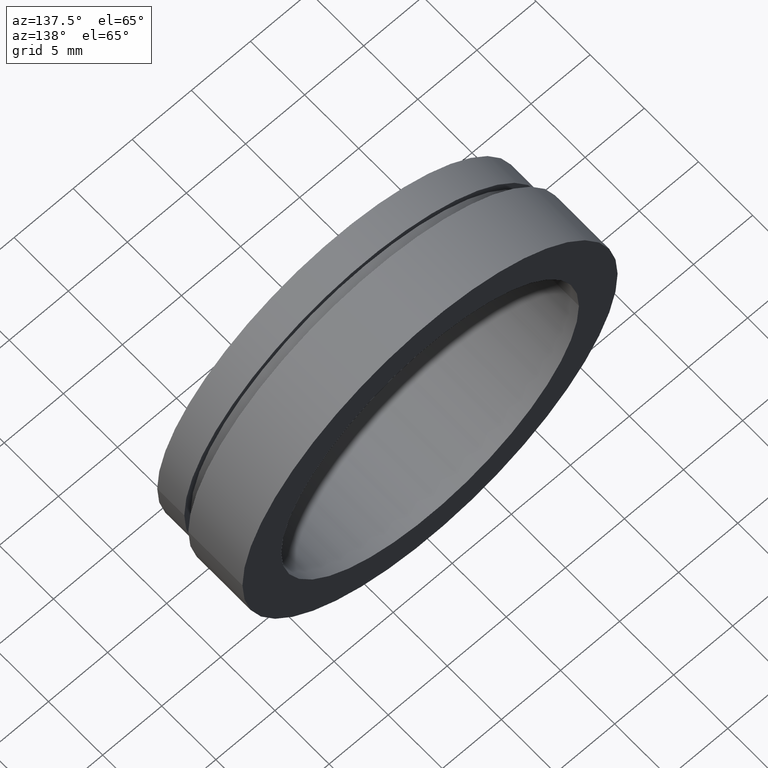
[diagram: clean part render]
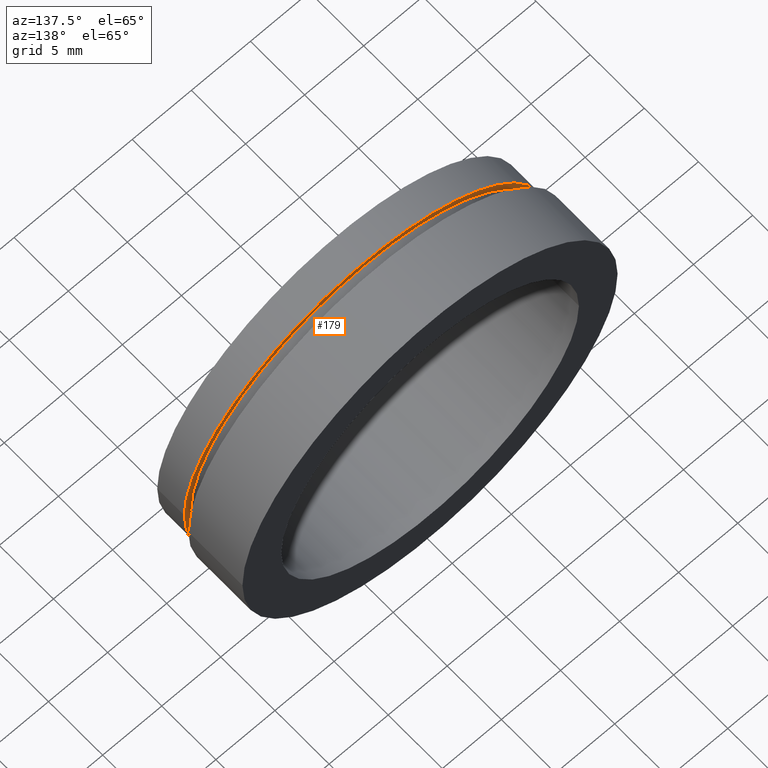
[diagram: same view with one face highlighted and labeled with its STEP entity id]
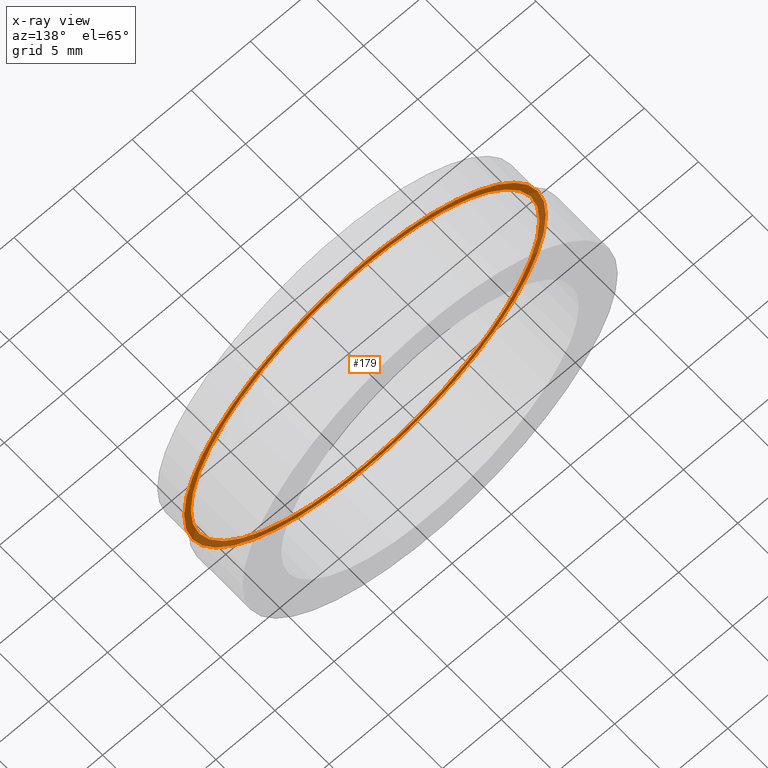
[diagram: x-ray of the same camera — body ghosted, the highlighted face saturated]
A machine part, auxiliary view. The second image highlights one B-rep face of the part: STEP entity #179.
The next image is the same camera in x-ray: the body ghosted, the highlighted face saturated — about 27% of this face is hidden behind the body in this view.
In plain terms, the highlighted planar face has unit normal (0, -1, 0).
Its self-contained STEP definition (entity closure, byte-faithful):
#4 = ORIENTED_EDGE ( 'NONE', *, *, #252, .F. ) ;
#25 = AXIS2_PLACEMENT_3D ( 'NONE', #39, #271, #67 ) ;
#26 = CIRCLE ( 'NONE', #211, 14.74999999999999800 ) ;
#38 = DIRECTION ( 'NONE',  ( -1.224646799147351000E-016, 1.000000000000000000, -0.0000000000000000000 ) ) ;
#39 = CARTESIAN_POINT ( 'NONE',  ( 1.828579243164447600E-015, 1.954535588880333700, 0.0000000000000000000 ) ) ;
#49 = DIRECTION ( 'NONE',  ( 1.000000000000000000, 1.224646799147351000E-016, 0.0000000000000000000 ) ) ;
#51 = VERTEX_POINT ( 'NONE', #172 ) ;
#63 = CIRCLE ( 'NONE', #195, 14.74999999999999800 ) ;
#66 = EDGE_LOOP ( 'NONE', ( #145, #4 ) ) ;
#67 = DIRECTION ( 'NONE',  ( -1.000000000000000000, -1.133806193448893400E-016, 0.0000000000000000000 ) ) ;
#82 = DIRECTION ( 'NONE',  ( 1.224646799147351000E-016, -1.000000000000000000, 0.0000000000000000000 ) ) ;
#127 = ORIENTED_EDGE ( 'NONE', *, *, #279, .T. ) ;
#145 = ORIENTED_EDGE ( 'NONE', *, *, #293, .F. ) ;
#151 = CARTESIAN_POINT ( 'NONE',  ( 1.828579243164447600E-015, 1.954535588880333700, 0.0000000000000000000 ) ) ;
#167 = VERTEX_POINT ( 'NONE', #225 ) ;
#172 = CARTESIAN_POINT ( 'NONE',  ( 15.30000000000000200, 1.954535588880335500, 1.873709602695450400E-015 ) ) ;
#178 = VERTEX_POINT ( 'NONE', #318 ) ;
#179 = ADVANCED_FACE ( 'NONE', ( #386, #196 ), #283, .F. ) ;
#184 = DIRECTION ( 'NONE',  ( -1.224646799147351000E-016, 1.000000000000000000, -0.0000000000000000000 ) ) ;
#190 = CARTESIAN_POINT ( 'NONE',  ( 14.75000000000000000, 1.954535588880335500, 1.806354028742345800E-015 ) ) ;
#195 = AXIS2_PLACEMENT_3D ( 'NONE', #403, #38, #369 ) ;
#196 = FACE_OUTER_BOUND ( 'NONE', #346, .T. ) ;
#206 = DIRECTION ( 'NONE',  ( -1.000000000000000000, -1.133806193448893400E-016, 0.0000000000000000000 ) ) ;
#211 = AXIS2_PLACEMENT_3D ( 'NONE', #151, #184, #244 ) ;
#225 = CARTESIAN_POINT ( 'NONE',  ( -15.29999999999999900, 1.954535588880332000, 0.0000000000000000000 ) ) ;
#229 = EDGE_CURVE ( 'NONE', #167, #51, #263, .T. ) ;
#244 = DIRECTION ( 'NONE',  ( -1.000000000000000000, -1.176083712526648900E-016, 0.0000000000000000000 ) ) ;
#250 = CARTESIAN_POINT ( 'NONE',  ( 1.828579243164447600E-015, 1.954535588880333700, 0.0000000000000000000 ) ) ;
#252 = EDGE_CURVE ( 'NONE', #430, #178, #63, .T. ) ;
#263 = CIRCLE ( 'NONE', #25, 15.30000000000000100 ) ;
#269 = AXIS2_PLACEMENT_3D ( 'NONE', #250, #367, #206 ) ;
#271 = DIRECTION ( 'NONE',  ( -1.224646799147351000E-016, 1.000000000000000000, -0.0000000000000000000 ) ) ;
#279 = EDGE_CURVE ( 'NONE', #51, #167, #415, .T. ) ;
#283 = PLANE ( 'NONE',  #387 ) ;
#293 = EDGE_CURVE ( 'NONE', #178, #430, #26, .T. ) ;
#318 = CARTESIAN_POINT ( 'NONE',  ( -14.74999999999999600, 1.954535588880332000, 0.0000000000000000000 ) ) ;
#324 = ORIENTED_EDGE ( 'NONE', *, *, #229, .T. ) ;
#346 = EDGE_LOOP ( 'NONE', ( #324, #127 ) ) ;
#367 = DIRECTION ( 'NONE',  ( -1.224646799147351000E-016, 1.000000000000000000, -0.0000000000000000000 ) ) ;
#369 = DIRECTION ( 'NONE',  ( -1.000000000000000000, -1.176083712526648900E-016, 0.0000000000000000000 ) ) ;
#386 = FACE_BOUND ( 'NONE', #66, .T. ) ;
#387 = AXIS2_PLACEMENT_3D ( 'NONE', #424, #82, #49 ) ;
#403 = CARTESIAN_POINT ( 'NONE',  ( 1.828579243164447600E-015, 1.954535588880333700, 0.0000000000000000000 ) ) ;
#415 = CIRCLE ( 'NONE', #269, 15.30000000000000100 ) ;
#424 = CARTESIAN_POINT ( 'NONE',  ( 14.75000000000000000, 1.954535588880335500, 0.0000000000000000000 ) ) ;
#430 = VERTEX_POINT ( 'NONE', #190 ) ;